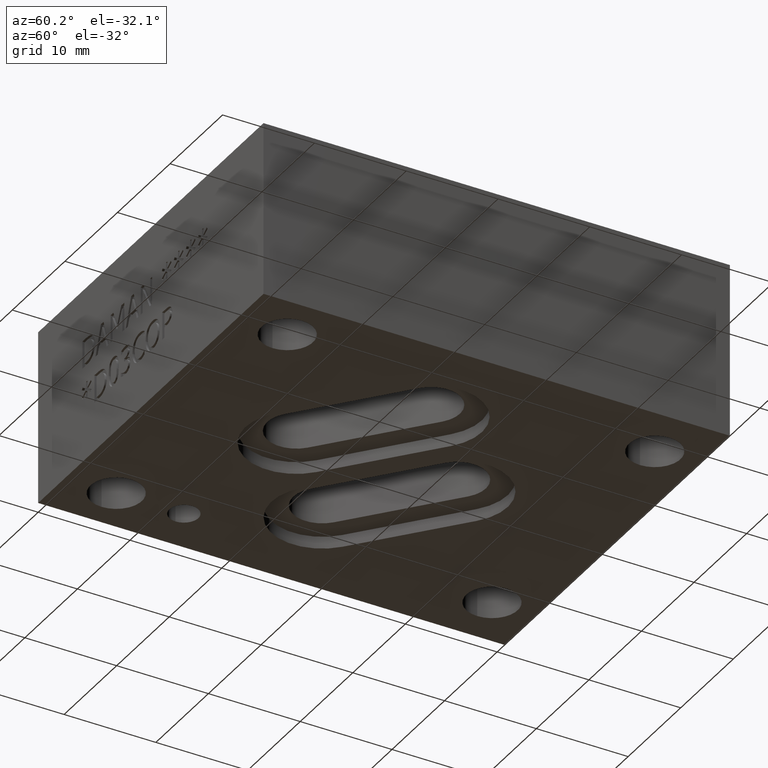
[diagram: clean part render]
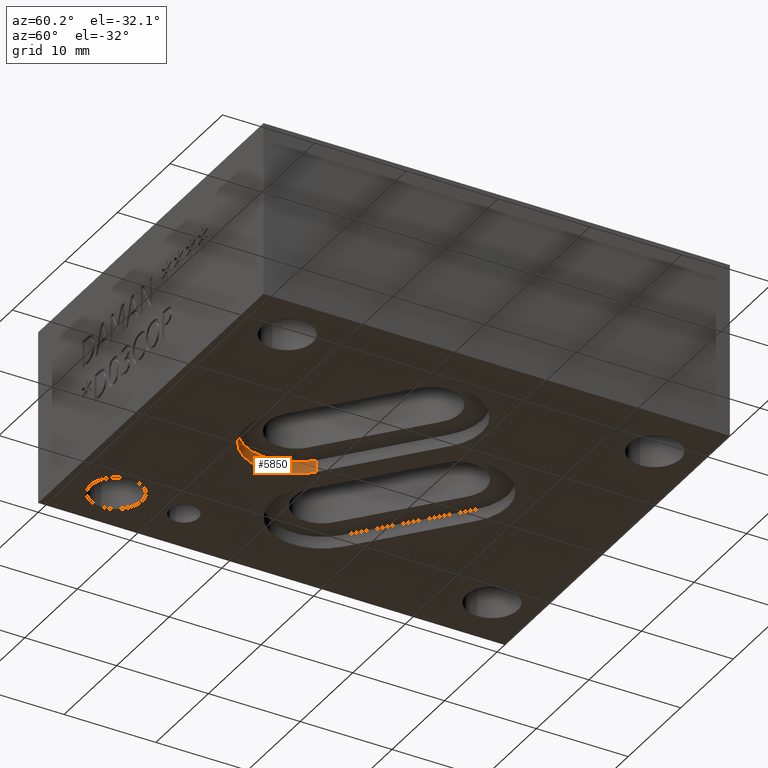
[diagram: same view with one face highlighted and labeled with its STEP entity id]
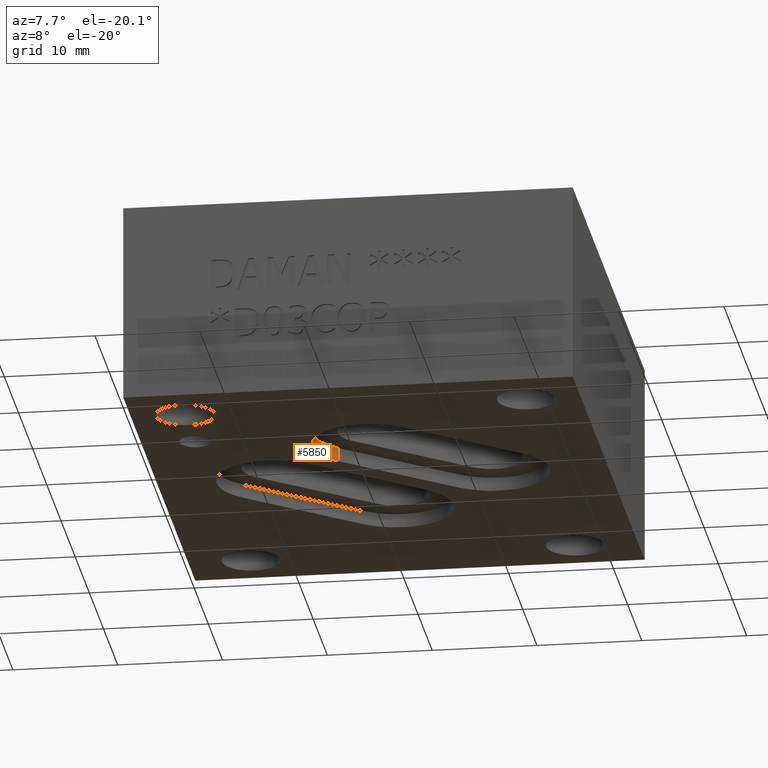
[diagram: same view with one face highlighted and labeled with its STEP entity id]
A machine part, auxiliary view. The second image highlights one B-rep face of the part: STEP entity #5850.
A second angle (auxiliary view) of the same face is appended — the face is thin or edge-on in the first view.
In plain terms, the highlighted cylindrical surface (partial cylindrical patch) has radius 5.5626 mm, axis along (0, 0, 1).
Its self-contained STEP definition (entity closure, byte-faithful):
#38=CIRCLE('',#6110,0.219);
#41=CIRCLE('',#6118,0.219);
#55=CYLINDRICAL_SURFACE('',#6117,0.219);
#475=FACE_OUTER_BOUND('',#812,.T.);
#812=EDGE_LOOP('',(#5276,#5277,#5278,#5279));
#1441=LINE('',#10247,#2077);
#1443=LINE('',#10253,#2079);
#2077=VECTOR('',#7167,0.052);
#2079=VECTOR('',#7171,0.052);
#2799=VERTEX_POINT('',#10241);
#2801=VERTEX_POINT('',#10245);
#2802=VERTEX_POINT('',#10249);
#2804=VERTEX_POINT('',#10252);
#3622=EDGE_CURVE('',#2799,#2801,#1441,.T.);
#3624=EDGE_CURVE('',#2802,#2804,#1443,.T.);
#3646=EDGE_CURVE('',#2804,#2801,#38,.T.);
#3655=EDGE_CURVE('',#2799,#2802,#41,.T.);
#5276=ORIENTED_EDGE('',*,*,#3624,.F.);
#5277=ORIENTED_EDGE('',*,*,#3655,.F.);
#5278=ORIENTED_EDGE('',*,*,#3622,.T.);
#5279=ORIENTED_EDGE('',*,*,#3646,.F.);
#5850=ADVANCED_FACE('',(#475),#55,.F.);
#6110=AXIS2_PLACEMENT_3D('',#10294,#7211,#7212);
#6117=AXIS2_PLACEMENT_3D('',#10311,#7231,#7232);
#6118=AXIS2_PLACEMENT_3D('',#10312,#7233,#7234);
#7167=DIRECTION('',(0.,0.,-1.));
#7171=DIRECTION('',(0.,0.,-1.));
#7211=DIRECTION('center_axis',(0.,0.,1.));
#7212=DIRECTION('ref_axis',(1.,0.,0.));
#7231=DIRECTION('center_axis',(0.,0.,1.));
#7232=DIRECTION('ref_axis',(-0.763742060489897,-0.645521544984089,0.));
#7233=DIRECTION('center_axis',(0.,0.,-1.));
#7234=DIRECTION('ref_axis',(1.,0.,0.));
#10241=CARTESIAN_POINT('',(0.985369218351515,0.456740488752713,0.052));
#10245=CARTESIAN_POINT('',(0.985369218351515,0.456740488752713,0.));
#10247=CARTESIAN_POINT('',(0.985369218351515,0.456740488752713,0.052));
#10249=CARTESIAN_POINT('',(0.702630781648484,0.791259511247288,0.052));
#10252=CARTESIAN_POINT('',(0.702630781648484,0.791259511247288,0.));
#10253=CARTESIAN_POINT('',(0.702630781648484,0.791259511247288,0.052));
#10294=CARTESIAN_POINT('Origin',(0.844,0.624,0.));
#10311=CARTESIAN_POINT('Origin',(0.844,0.624,0.));
#10312=CARTESIAN_POINT('Origin',(0.844,0.624,0.052));